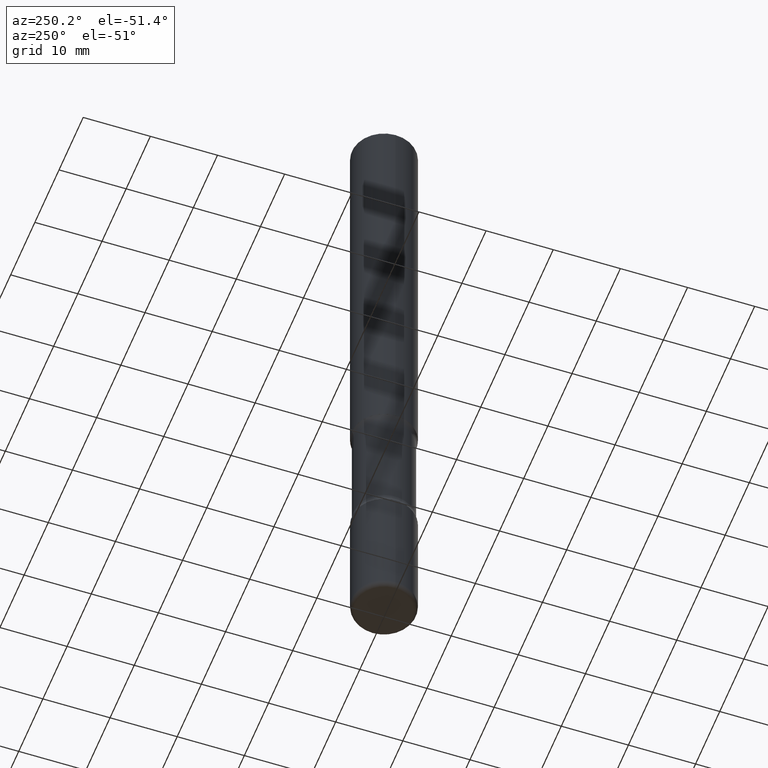
[diagram: clean part render]
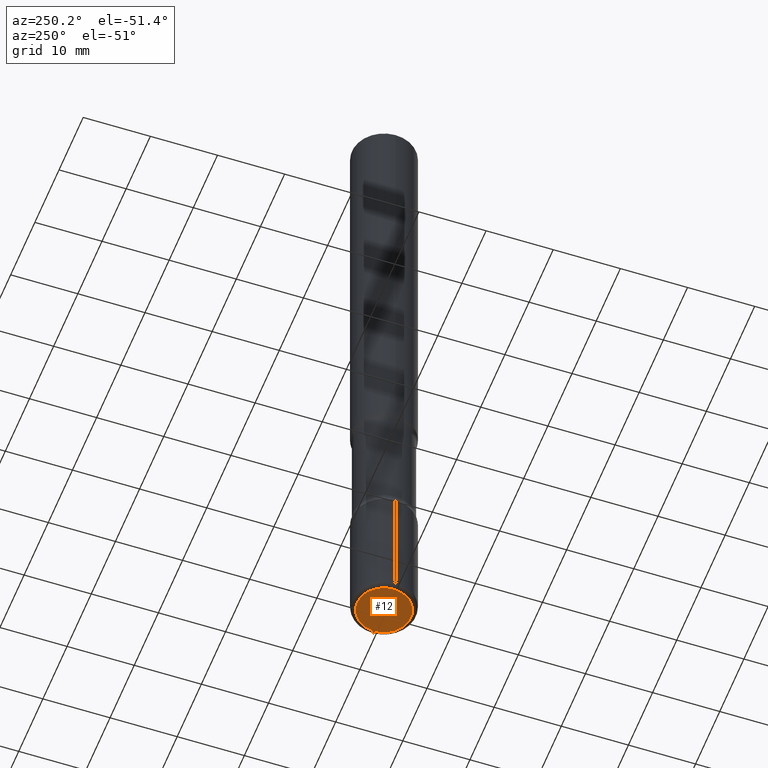
[diagram: same view with one face highlighted and labeled with its STEP entity id]
A machine part, auxiliary view. The second image highlights one B-rep face of the part: STEP entity #12.
In plain terms, the highlighted planar face has unit normal (0, -0, -1).
Its self-contained STEP definition (entity closure, byte-faithful):
#12 = ADVANCED_FACE ( 'NONE', ( #447 ), #106, .T. ) ;
#23 = DIRECTION ( 'NONE',  ( -1.000000000000000000, 6.982962677686265922E-15, -4.876176775795935793E-29 ) ) ;
#67 = DIRECTION ( 'NONE',  ( 2.438088387897960049E-29, -3.491481338843145188E-15, -1.000000000000000000 ) ) ;
#106 = PLANE ( 'NONE',  #515 ) ;
#122 = AXIS2_PLACEMENT_3D ( 'NONE', #380, #549, #166 ) ;
#154 = EDGE_LOOP ( 'NONE', ( #155, #172 ) ) ;
#155 = ORIENTED_EDGE ( 'NONE', *, *, #203, .F. ) ;
#163 = DIRECTION ( 'NONE',  ( -2.445468806185136597E-29, 3.491481338843145583E-15, 1.000000000000000000 ) ) ;
#166 = DIRECTION ( 'NONE',  ( 1.000000000000000000, -6.982962677686267499E-15, 0.000000000000000000 ) ) ;
#172 = ORIENTED_EDGE ( 'NONE', *, *, #547, .F. ) ;
#198 = AXIS2_PLACEMENT_3D ( 'NONE', #239, #163, #498 ) ;
#203 = EDGE_CURVE ( 'NONE', #220, #205, #470, .T. ) ;
#205 = VERTEX_POINT ( 'NONE', #259 ) ;
#220 = VERTEX_POINT ( 'NONE', #548 ) ;
#239 = CARTESIAN_POINT ( 'NONE',  ( 9.781875224740546387E-29, -1.396592535537258233E-14, -4.000000000000000000 ) ) ;
#259 = CARTESIAN_POINT ( 'NONE',  ( -0.1575000000000001676, -1.268786691610376371E-14, -4.000000000000000000 ) ) ;
#380 = CARTESIAN_POINT ( 'NONE',  ( 9.781875224740546387E-29, -1.396592535537258233E-14, -4.000000000000000000 ) ) ;
#447 = FACE_OUTER_BOUND ( 'NONE', #154, .T. ) ;
#470 = CIRCLE ( 'NONE', #198, 0.1575000000000001676 ) ;
#498 = DIRECTION ( 'NONE',  ( 1.000000000000000000, -6.982962677686267499E-15, 0.000000000000000000 ) ) ;
#515 = AXIS2_PLACEMENT_3D ( 'NONE', #536, #67, #23 ) ;
#536 = CARTESIAN_POINT ( 'NONE',  ( 9.781875224740546387E-29, -1.396592535537258233E-14, -4.000000000000000000 ) ) ;
#547 = EDGE_CURVE ( 'NONE', #205, #220, #559, .T. ) ;
#548 = CARTESIAN_POINT ( 'NONE',  ( 0.1575000000000001676, -1.506574197710817060E-14, -4.000000000000000000 ) ) ;
#549 = DIRECTION ( 'NONE',  ( -2.445468806185136597E-29, 3.491481338843145583E-15, 1.000000000000000000 ) ) ;
#559 = CIRCLE ( 'NONE', #122, 0.1575000000000001676 ) ;